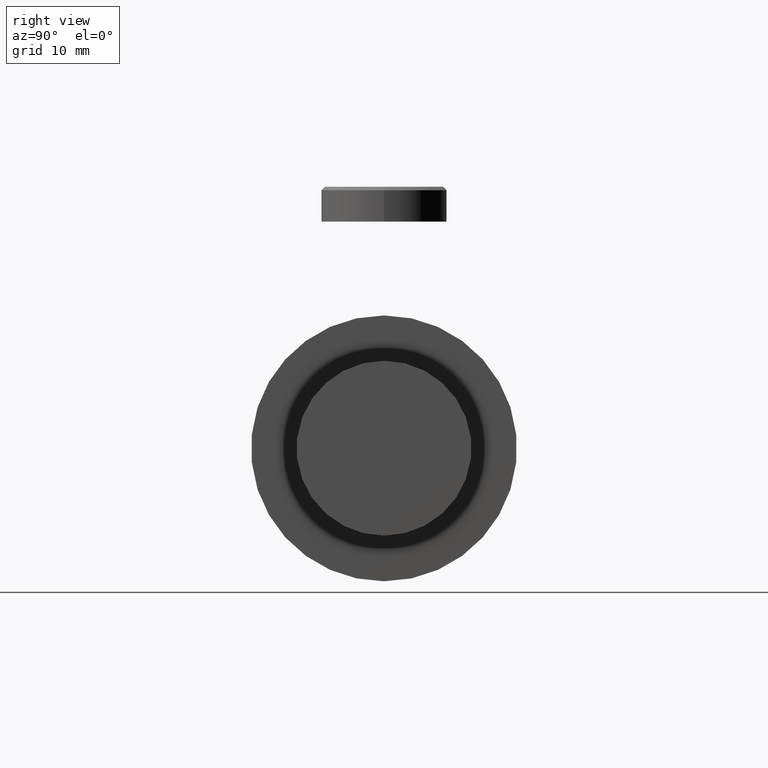
[diagram: clean part render]
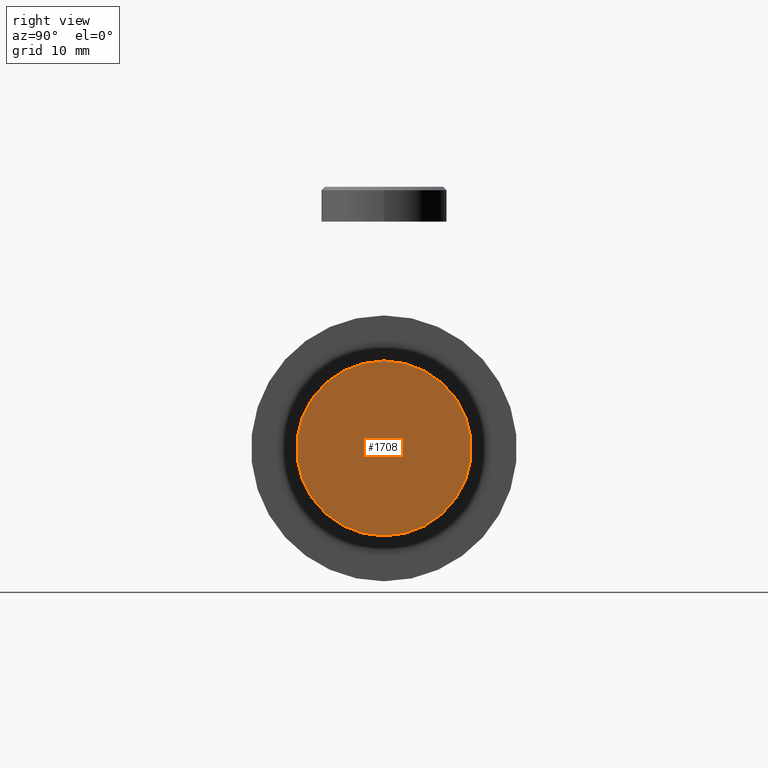
[diagram: same view with one face highlighted and labeled with its STEP entity id]
A machine part, right view. The second image highlights one B-rep face of the part: STEP entity #1708.
In plain terms, the highlighted planar face has unit normal (-1, 0, 0).
Its self-contained STEP definition (entity closure, byte-faithful):
#1708 = ADVANCED_FACE ( 'NONE', ( #25297 ), #11461, .F. ) ;
#3779 = DIRECTION ( 'NONE',  ( 1.000000000000000000, 0.000000000000000000, 0.000000000000000000 ) ) ;
#9359 = VERTEX_POINT ( 'NONE', #44982 ) ;
#9649 = EDGE_CURVE ( 'NONE', #10141, #9359, #15891, .T. ) ;
#10141 = VERTEX_POINT ( 'NONE', #27087 ) ;
#11461 = PLANE ( 'NONE',  #17100 ) ;
#13652 = AXIS2_PLACEMENT_3D ( 'NONE', #42618, #17946, #39154 ) ;
#15891 = CIRCLE ( 'NONE', #13652, 12.50000000000000000 ) ;
#16397 = EDGE_CURVE ( 'NONE', #9359, #10141, #37320, .T. ) ;
#17100 = AXIS2_PLACEMENT_3D ( 'NONE', #17923, #35450, #39353 ) ;
#17923 = CARTESIAN_POINT ( 'NONE',  ( 0.000000000000000000, 0.000000000000000000, 0.000000000000000000 ) ) ;
#17946 = DIRECTION ( 'NONE',  ( 0.000000000000000000, 0.000000000000000000, 1.000000000000000000 ) ) ;
#21978 = ORIENTED_EDGE ( 'NONE', *, *, #9649, .F. ) ;
#24783 = DIRECTION ( 'NONE',  ( 0.000000000000000000, 0.000000000000000000, 1.000000000000000000 ) ) ;
#25297 = FACE_OUTER_BOUND ( 'NONE', #38292, .T. ) ;
#27087 = CARTESIAN_POINT ( 'NONE',  ( 12.50000000000000000, 1.530808498934191521E-15, 0.000000000000000000 ) ) ;
#31409 = AXIS2_PLACEMENT_3D ( 'NONE', #42291, #24783, #3779 ) ;
#35450 = DIRECTION ( 'NONE',  ( 0.000000000000000000, 0.000000000000000000, 1.000000000000000000 ) ) ;
#37320 = CIRCLE ( 'NONE', #31409, 12.50000000000000000 ) ;
#37819 = ORIENTED_EDGE ( 'NONE', *, *, #16397, .F. ) ;
#38292 = EDGE_LOOP ( 'NONE', ( #37819, #21978 ) ) ;
#39154 = DIRECTION ( 'NONE',  ( 1.000000000000000000, 0.000000000000000000, 0.000000000000000000 ) ) ;
#39353 = DIRECTION ( 'NONE',  ( 1.000000000000000000, 0.000000000000000000, -0.000000000000000000 ) ) ;
#42291 = CARTESIAN_POINT ( 'NONE',  ( 0.000000000000000000, 0.000000000000000000, 0.000000000000000000 ) ) ;
#42618 = CARTESIAN_POINT ( 'NONE',  ( 0.000000000000000000, 0.000000000000000000, 0.000000000000000000 ) ) ;
#44982 = CARTESIAN_POINT ( 'NONE',  ( -12.50000000000000000, 0.000000000000000000, 0.000000000000000000 ) ) ;